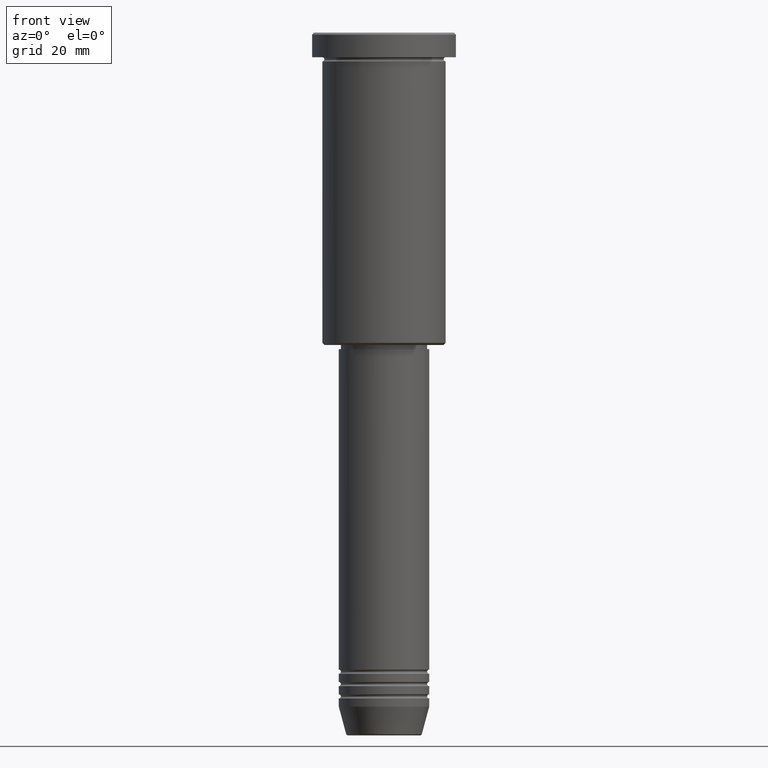
[diagram: clean part render]
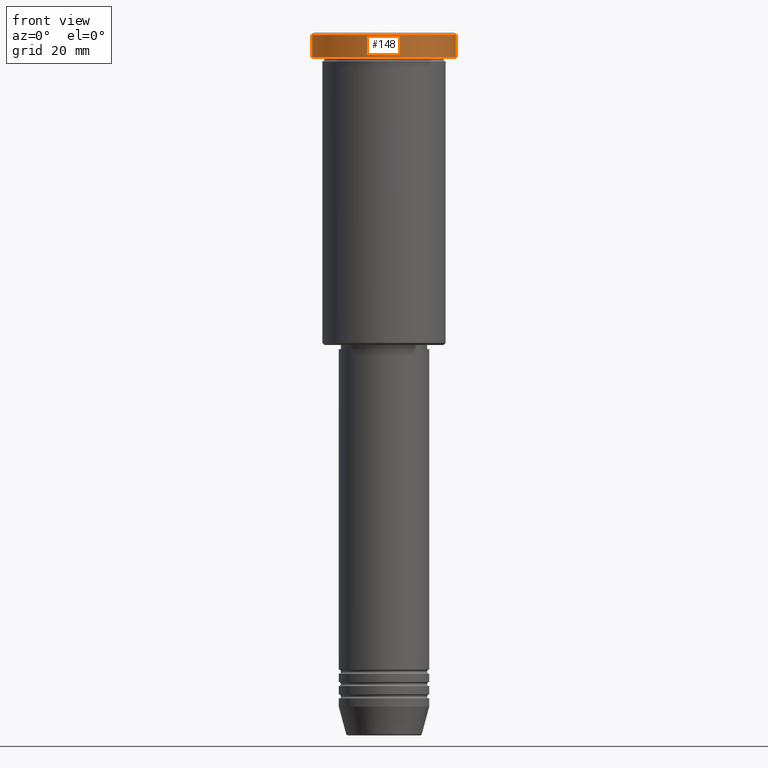
[diagram: same view with one face highlighted and labeled with its STEP entity id]
A machine part, front view. The second image highlights one B-rep face of the part: STEP entity #148.
In plain terms, the highlighted cylindrical surface (partial cylindrical patch) has radius 17.5 mm, axis along (-0, -0, 1).
Its self-contained STEP definition (entity closure, byte-faithful):
#74 = CARTESIAN_POINT ( 'NONE',  ( -17.50000000000000000, 2.143131898507868248E-15, -0.4999999999999727995 ) ) ;
#148 = ADVANCED_FACE ( 'NONE', ( #381 ), #737, .T. ) ;
#172 = VERTEX_POINT ( 'NONE', #74 ) ;
#192 = AXIS2_PLACEMENT_3D ( 'NONE', #1112, #286, #836 ) ;
#215 = CIRCLE ( 'NONE', #432, 17.50000000000000000 ) ;
#250 = ORIENTED_EDGE ( 'NONE', *, *, #883, .T. ) ;
#258 = DIRECTION ( 'NONE',  ( -0.000000000000000000, -0.000000000000000000, 1.000000000000000000 ) ) ;
#286 = DIRECTION ( 'NONE',  ( -0.000000000000000000, -0.000000000000000000, 1.000000000000000000 ) ) ;
#309 = AXIS2_PLACEMENT_3D ( 'NONE', #706, #541, #898 ) ;
#374 = VECTOR ( 'NONE', #1130, 1000.000000000000000 ) ;
#381 = FACE_OUTER_BOUND ( 'NONE', #1165, .T. ) ;
#399 = DIRECTION ( 'NONE',  ( 0.000000000000000000, 0.000000000000000000, -1.000000000000000000 ) ) ;
#428 = CIRCLE ( 'NONE', #309, 17.50000000000000000 ) ;
#432 = AXIS2_PLACEMENT_3D ( 'NONE', #852, #399, #761 ) ;
#436 = CARTESIAN_POINT ( 'NONE',  ( -17.50000000000000000, 2.143131898507868248E-15, -5.999999999999995559 ) ) ;
#459 = VERTEX_POINT ( 'NONE', #626 ) ;
#512 = EDGE_CURVE ( 'NONE', #1033, #534, #428, .T. ) ;
#518 = CARTESIAN_POINT ( 'NONE',  ( 17.50000000000000000, 0.000000000000000000, -5.999999999999995559 ) ) ;
#530 = VECTOR ( 'NONE', #258, 1000.000000000000000 ) ;
#534 = VERTEX_POINT ( 'NONE', #518 ) ;
#541 = DIRECTION ( 'NONE',  ( -0.000000000000000000, -0.000000000000000000, 1.000000000000000000 ) ) ;
#557 = ORIENTED_EDGE ( 'NONE', *, *, #896, .F. ) ;
#626 = CARTESIAN_POINT ( 'NONE',  ( 17.50000000000000000, 0.000000000000000000, -0.4999999999999727995 ) ) ;
#688 = CARTESIAN_POINT ( 'NONE',  ( 17.50000000000000000, 0.000000000000000000, 0.000000000000000000 ) ) ;
#706 = CARTESIAN_POINT ( 'NONE',  ( 0.000000000000000000, 0.000000000000000000, -5.999999999999995559 ) ) ;
#737 = CYLINDRICAL_SURFACE ( 'NONE', #192, 17.50000000000000000 ) ;
#761 = DIRECTION ( 'NONE',  ( 1.000000000000000000, 0.000000000000000000, 0.000000000000000000 ) ) ;
#777 = EDGE_CURVE ( 'NONE', #534, #459, #1093, .T. ) ;
#836 = DIRECTION ( 'NONE',  ( 1.000000000000000000, 0.000000000000000000, 0.000000000000000000 ) ) ;
#852 = CARTESIAN_POINT ( 'NONE',  ( 0.000000000000000000, 0.000000000000000000, -0.4999999999999727995 ) ) ;
#883 = EDGE_CURVE ( 'NONE', #459, #172, #215, .T. ) ;
#896 = EDGE_CURVE ( 'NONE', #1033, #172, #1122, .T. ) ;
#898 = DIRECTION ( 'NONE',  ( 1.000000000000000000, 0.000000000000000000, 0.000000000000000000 ) ) ;
#980 = CARTESIAN_POINT ( 'NONE',  ( -17.50000000000000000, 2.143131898507868248E-15, 0.000000000000000000 ) ) ;
#1019 = ORIENTED_EDGE ( 'NONE', *, *, #777, .T. ) ;
#1022 = ORIENTED_EDGE ( 'NONE', *, *, #512, .T. ) ;
#1033 = VERTEX_POINT ( 'NONE', #436 ) ;
#1093 = LINE ( 'NONE', #688, #374 ) ;
#1112 = CARTESIAN_POINT ( 'NONE',  ( 0.000000000000000000, 0.000000000000000000, 0.000000000000000000 ) ) ;
#1122 = LINE ( 'NONE', #980, #530 ) ;
#1130 = DIRECTION ( 'NONE',  ( -0.000000000000000000, -0.000000000000000000, 1.000000000000000000 ) ) ;
#1165 = EDGE_LOOP ( 'NONE', ( #557, #1022, #1019, #250 ) ) ;